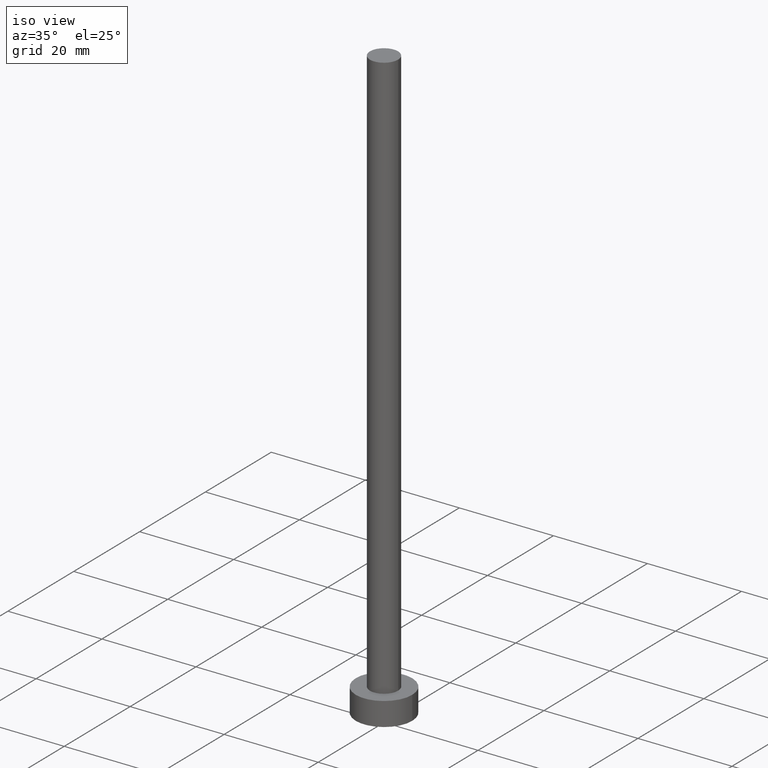
[diagram: clean part render]
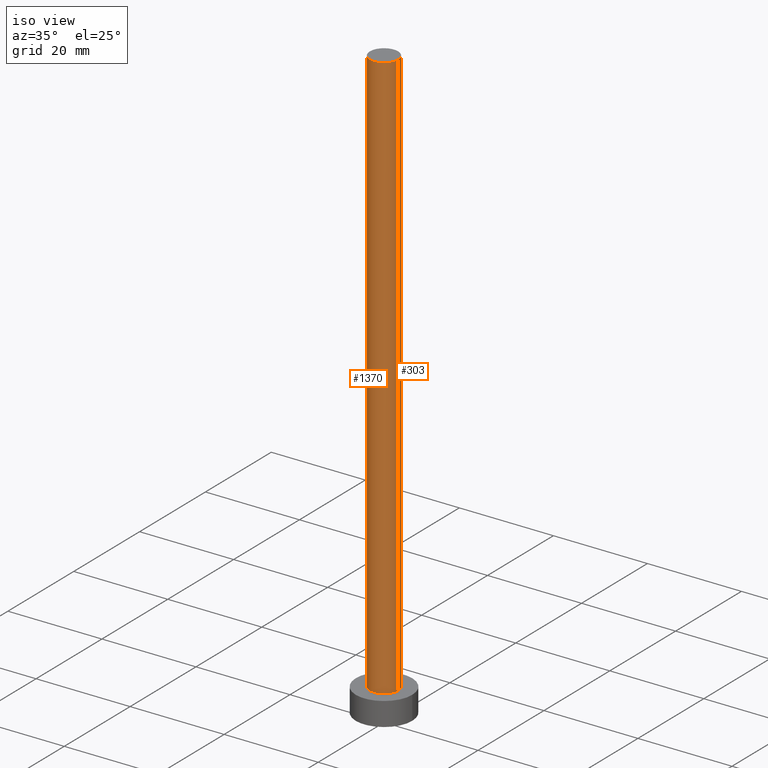
[diagram: same view with one multi-face feature highlighted, each face labeled with its STEP entity id]
A machine part, iso view. The highlighted faces form ONE feature: a constant-radius fillet chain: 2 tangent blend faces with common blend radius 3 mm. The faces share edges in the B-rep.
Their STEP definitions:
[1] entity #303 (Cylinder):
#41 = CARTESIAN_POINT ( 'NONE',  ( 0.000000000000000000, 0.000000000000000000, 5.000000000000000000 ) ) ;
#90 = DIRECTION ( 'NONE',  ( -0.000000000000000000, -0.000000000000000000, -1.000000000000000000 ) ) ;
#104 = DIRECTION ( 'NONE',  ( 1.000000000000000000, 0.000000000000000000, 0.000000000000000000 ) ) ;
#193 = VERTEX_POINT ( 'NONE', #548 ) ;
#210 = CARTESIAN_POINT ( 'NONE',  ( 0.000000000000000000, 0.000000000000000000, 126.2999999999999972 ) ) ;
#239 = AXIS2_PLACEMENT_3D ( 'NONE', #541, #90, #1134 ) ;
#240 = EDGE_LOOP ( 'NONE', ( #696, #533, #918, #949 ) ) ;
#303 = ADVANCED_FACE ( 'NONE', ( #899 ), #677, .T. ) ;
#401 = VECTOR ( 'NONE', #615, 1000.000000000000000 ) ;
#405 = EDGE_CURVE ( 'NONE', #606, #193, #429, .T. ) ;
#429 = CIRCLE ( 'NONE', #457, 3.000000000000000444 ) ;
#457 = AXIS2_PLACEMENT_3D ( 'NONE', #210, #669, #104 ) ;
#493 = DIRECTION ( 'NONE',  ( 1.000000000000000000, 0.000000000000000000, 0.000000000000000000 ) ) ;
#533 = ORIENTED_EDGE ( 'NONE', *, *, #1285, .T. ) ;
#541 = CARTESIAN_POINT ( 'NONE',  ( 0.000000000000000000, 0.000000000000000000, 126.2999999999999972 ) ) ;
#548 = CARTESIAN_POINT ( 'NONE',  ( -3.000000000000000444, 0.000000000000000000, 126.2999999999999972 ) ) ;
#567 = CARTESIAN_POINT ( 'NONE',  ( -3.000000000000000444, 0.000000000000000000, 5.000000000000000000 ) ) ;
#605 = LINE ( 'NONE', #702, #401 ) ;
#606 = VERTEX_POINT ( 'NONE', #938 ) ;
#615 = DIRECTION ( 'NONE',  ( -0.000000000000000000, -0.000000000000000000, -1.000000000000000000 ) ) ;
#659 = VECTOR ( 'NONE', #1070, 1000.000000000000000 ) ;
#661 = VERTEX_POINT ( 'NONE', #567 ) ;
#669 = DIRECTION ( 'NONE',  ( 0.000000000000000000, 0.000000000000000000, 1.000000000000000000 ) ) ;
#677 = CYLINDRICAL_SURFACE ( 'NONE', #239, 3.000000000000000444 ) ;
#696 = ORIENTED_EDGE ( 'NONE', *, *, #405, .F. ) ;
#702 = CARTESIAN_POINT ( 'NONE',  ( 3.000000000000000444, 3.673940397442060361E-16, 126.2999999999999972 ) ) ;
#721 = VERTEX_POINT ( 'NONE', #1146 ) ;
#807 = AXIS2_PLACEMENT_3D ( 'NONE', #41, #1069, #493 ) ;
#899 = FACE_OUTER_BOUND ( 'NONE', #240, .T. ) ;
#918 = ORIENTED_EDGE ( 'NONE', *, *, #922, .T. ) ;
#922 = EDGE_CURVE ( 'NONE', #721, #661, #1313, .T. ) ;
#938 = CARTESIAN_POINT ( 'NONE',  ( 3.000000000000000444, 3.673940397442060361E-16, 126.2999999999999972 ) ) ;
#949 = ORIENTED_EDGE ( 'NONE', *, *, #1404, .F. ) ;
#1069 = DIRECTION ( 'NONE',  ( 0.000000000000000000, 0.000000000000000000, 1.000000000000000000 ) ) ;
#1070 = DIRECTION ( 'NONE',  ( -0.000000000000000000, -0.000000000000000000, -1.000000000000000000 ) ) ;
#1094 = CARTESIAN_POINT ( 'NONE',  ( -3.000000000000000444, 0.000000000000000000, 126.2999999999999972 ) ) ;
#1134 = DIRECTION ( 'NONE',  ( -1.000000000000000000, 0.000000000000000000, 0.000000000000000000 ) ) ;
#1146 = CARTESIAN_POINT ( 'NONE',  ( 3.000000000000000444, 3.673940397442060361E-16, 5.000000000000000000 ) ) ;
#1186 = LINE ( 'NONE', #1094, #659 ) ;
#1285 = EDGE_CURVE ( 'NONE', #606, #721, #605, .T. ) ;
#1313 = CIRCLE ( 'NONE', #807, 3.000000000000000444 ) ;
#1404 = EDGE_CURVE ( 'NONE', #193, #661, #1186, .T. ) ;
[2] entity #1370 (Cylinder):
#23 = EDGE_CURVE ( 'NONE', #193, #606, #769, .T. ) ;
#42 = ORIENTED_EDGE ( 'NONE', *, *, #1285, .F. ) ;
#44 = EDGE_CURVE ( 'NONE', #661, #721, #524, .T. ) ;
#150 = DIRECTION ( 'NONE',  ( -0.000000000000000000, -0.000000000000000000, -1.000000000000000000 ) ) ;
#193 = VERTEX_POINT ( 'NONE', #548 ) ;
#220 = DIRECTION ( 'NONE',  ( 1.000000000000000000, 0.000000000000000000, 0.000000000000000000 ) ) ;
#326 = CARTESIAN_POINT ( 'NONE',  ( 0.000000000000000000, 0.000000000000000000, 5.000000000000000000 ) ) ;
#333 = DIRECTION ( 'NONE',  ( 0.000000000000000000, 0.000000000000000000, 1.000000000000000000 ) ) ;
#401 = VECTOR ( 'NONE', #615, 1000.000000000000000 ) ;
#437 = DIRECTION ( 'NONE',  ( 1.000000000000000000, 0.000000000000000000, 0.000000000000000000 ) ) ;
#443 = AXIS2_PLACEMENT_3D ( 'NONE', #1176, #150, #730 ) ;
#478 = ORIENTED_EDGE ( 'NONE', *, *, #44, .T. ) ;
#524 = CIRCLE ( 'NONE', #906, 3.000000000000000444 ) ;
#548 = CARTESIAN_POINT ( 'NONE',  ( -3.000000000000000444, 0.000000000000000000, 126.2999999999999972 ) ) ;
#567 = CARTESIAN_POINT ( 'NONE',  ( -3.000000000000000444, 0.000000000000000000, 5.000000000000000000 ) ) ;
#605 = LINE ( 'NONE', #702, #401 ) ;
#606 = VERTEX_POINT ( 'NONE', #938 ) ;
#615 = DIRECTION ( 'NONE',  ( -0.000000000000000000, -0.000000000000000000, -1.000000000000000000 ) ) ;
#652 = DIRECTION ( 'NONE',  ( 0.000000000000000000, 0.000000000000000000, 1.000000000000000000 ) ) ;
#659 = VECTOR ( 'NONE', #1070, 1000.000000000000000 ) ;
#661 = VERTEX_POINT ( 'NONE', #567 ) ;
#702 = CARTESIAN_POINT ( 'NONE',  ( 3.000000000000000444, 3.673940397442060361E-16, 126.2999999999999972 ) ) ;
#703 = ORIENTED_EDGE ( 'NONE', *, *, #23, .F. ) ;
#720 = FACE_OUTER_BOUND ( 'NONE', #836, .T. ) ;
#721 = VERTEX_POINT ( 'NONE', #1146 ) ;
#730 = DIRECTION ( 'NONE',  ( -1.000000000000000000, 0.000000000000000000, 0.000000000000000000 ) ) ;
#769 = CIRCLE ( 'NONE', #999, 3.000000000000000444 ) ;
#821 = CYLINDRICAL_SURFACE ( 'NONE', #443, 3.000000000000000444 ) ;
#836 = EDGE_LOOP ( 'NONE', ( #42, #703, #1267, #478 ) ) ;
#906 = AXIS2_PLACEMENT_3D ( 'NONE', #326, #333, #437 ) ;
#938 = CARTESIAN_POINT ( 'NONE',  ( 3.000000000000000444, 3.673940397442060361E-16, 126.2999999999999972 ) ) ;
#999 = AXIS2_PLACEMENT_3D ( 'NONE', #1445, #652, #220 ) ;
#1070 = DIRECTION ( 'NONE',  ( -0.000000000000000000, -0.000000000000000000, -1.000000000000000000 ) ) ;
#1094 = CARTESIAN_POINT ( 'NONE',  ( -3.000000000000000444, 0.000000000000000000, 126.2999999999999972 ) ) ;
#1146 = CARTESIAN_POINT ( 'NONE',  ( 3.000000000000000444, 3.673940397442060361E-16, 5.000000000000000000 ) ) ;
#1176 = CARTESIAN_POINT ( 'NONE',  ( 0.000000000000000000, 0.000000000000000000, 126.2999999999999972 ) ) ;
#1186 = LINE ( 'NONE', #1094, #659 ) ;
#1267 = ORIENTED_EDGE ( 'NONE', *, *, #1404, .T. ) ;
#1285 = EDGE_CURVE ( 'NONE', #606, #721, #605, .T. ) ;
#1370 = ADVANCED_FACE ( 'NONE', ( #720 ), #821, .T. ) ;
#1404 = EDGE_CURVE ( 'NONE', #193, #661, #1186, .T. ) ;
#1445 = CARTESIAN_POINT ( 'NONE',  ( 0.000000000000000000, 0.000000000000000000, 126.2999999999999972 ) ) ;